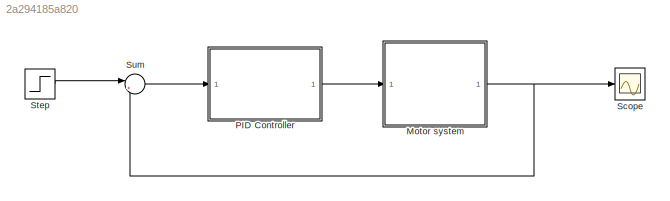
MODEL slx_2a294185a820
KIND model
CONFIG AbsTol = auto
CONFIG EnableMultiTasking = off
CONFIG FixedStep = auto
CONFIG MaxStep = auto
CONFIG MinStep = auto
CONFIG RelTol = 1e-3
CONFIG SampleTimeConstraint = Unconstrained
CONFIG SolverName = VariableStepAuto
CONFIG StartTime = 0.0
CONFIG StopTime = 0.2
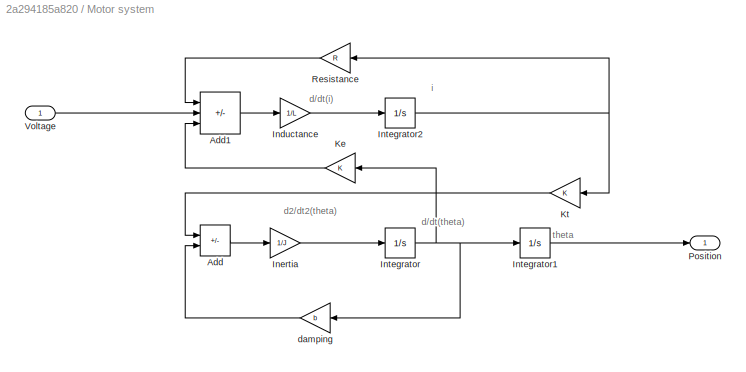
BLOCK [SubSystem] Motor system
  Ports = [1, 1]
  RequestExecContextInheritance = off
BLOCK [Sum] Motor system/Add
  IconShape = rectangular
  Inputs = +-
  Ports = [2, 1]
BLOCK [Sum] Motor system/Add1
  IconShape = rectangular
  Inputs = -+-
  Ports = [3, 1]
BLOCK [Gain] Motor system/Inductance
  Gain = 1/L
BLOCK [Gain] Motor system/Inertia
  Gain = 1/J
BLOCK [Integrator] Motor system/Integrator
  Ports = [1, 1]
BLOCK [Integrator] Motor system/Integrator1
  Ports = [1, 1]
BLOCK [Integrator] Motor system/Integrator2
  Ports = [1, 1]
BLOCK [Gain] Motor system/Ke
  Gain = K
  NameLocation = top
BLOCK [Gain] Motor system/Kt
  Gain = K
  NameLocation = top
BLOCK [Outport] Motor system/Position
BLOCK [Gain] Motor system/Resistance
  Gain = R
BLOCK [Inport] Motor system/Voltage
BLOCK [Gain] Motor system/damping
  Gain = b
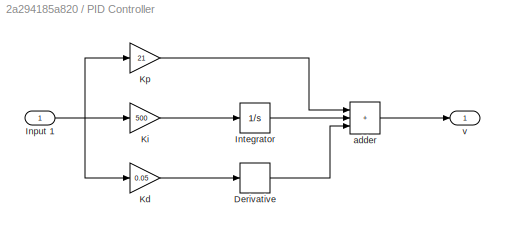
BLOCK [SubSystem] PID Controller
  Ports = [1, 1]
  RequestExecContextInheritance = off
BLOCK [Derivative] PID Controller/Derivative
BLOCK [Inport] PID Controller/Input 1
BLOCK [Integrator] PID Controller/Integrator
  Ports = [1, 1]
BLOCK [Gain] PID Controller/Kd
  Gain = 0.05
BLOCK [Gain] PID Controller/Ki
  Gain = 500
BLOCK [Gain] PID Controller/Kp
  Gain = 21
BLOCK [Sum] PID Controller/adder
  IconShape = rectangular
  Inputs = +++
  Ports = [3, 1]
BLOCK [Outport] PID Controller/v
BLOCK [Scope] Scope
  Floating = off
  NumInputPorts = 1
  Ports = [1]
  ScopeSpecificationString = Simulink.scopes.TimeScopeBlockCfg('CurrentConfiguration', extmgr.ConfigurationSet(extmgr.Configuration('Core','General UI',true),extmgr.Configuration('Core','Source UI',true),extmgr.Configuration('Sources','WiredSimulink',true),extmgr.Configuration('Visuals','Time Domain',true,'SerializedDisplays',{struct('MinYLimReal','-87.99707','MaxYLimReal','791.97364','YLabelReal','','MinYLimMag','0.00000','M...<+1417ch>
BLOCK [Step] Step
  After = 500
  SampleTime = 0
  Time = 0
BLOCK [Sum] Sum
  Inputs = |+-
  Ports = [2, 1]
ANNOTATION Motor system: d/dt(i)
ANNOTATION Motor system: d/dt(theta)
ANNOTATION Motor system: d2/dt2(theta)
ANNOTATION Motor system: i
ANNOTATION Motor system: theta
LINE Motor system/Add1:1 -> Motor system/Inductance:1
LINE Motor system/Add:1 -> Motor system/Inertia:1
LINE Motor system/Inductance:1 -> Motor system/Integrator2:1
LINE Motor system/Inertia:1 -> Motor system/Integrator:1
LINE Motor system/Integrator1:1 -> Motor system/Position:1
NET Motor system/Integrator2:1 -> Motor system/Kt:1, Motor system/Resistance:1
NET Motor system/Integrator:1 -> Motor system/Integrator1:1, Motor system/Ke:1, Motor system/damping:1
LINE Motor system/Ke:1 -> Motor system/Add1:3
LINE Motor system/Kt:1 -> Motor system/Add:1
LINE Motor system/Resistance:1 -> Motor system/Add1:1
LINE Motor system/Voltage:1 -> Motor system/Add1:2
LINE Motor system/damping:1 -> Motor system/Add:2
NET Motor system:1 -> Scope:1, Sum:2
LINE PID Controller/Derivative:1 -> PID Controller/adder:3
NET PID Controller/Input 1:1 -> PID Controller/Kd:1, PID Controller/Ki:1, PID Controller/Kp:1
LINE PID Controller/Integrator:1 -> PID Controller/adder:2
LINE PID Controller/Kd:1 -> PID Controller/Derivative:1
LINE PID Controller/Ki:1 -> PID Controller/Integrator:1
LINE PID Controller/Kp:1 -> PID Controller/adder:1
LINE PID Controller/adder:1 -> PID Controller/v:1
LINE PID Controller:1 -> Motor system:1
LINE Step:1 -> Sum:1
LINE Sum:1 -> PID Controller:1
note: NET lines group one-source signal fan-out (src -> all destinations, sorted); 1:1 wires keep LINE
